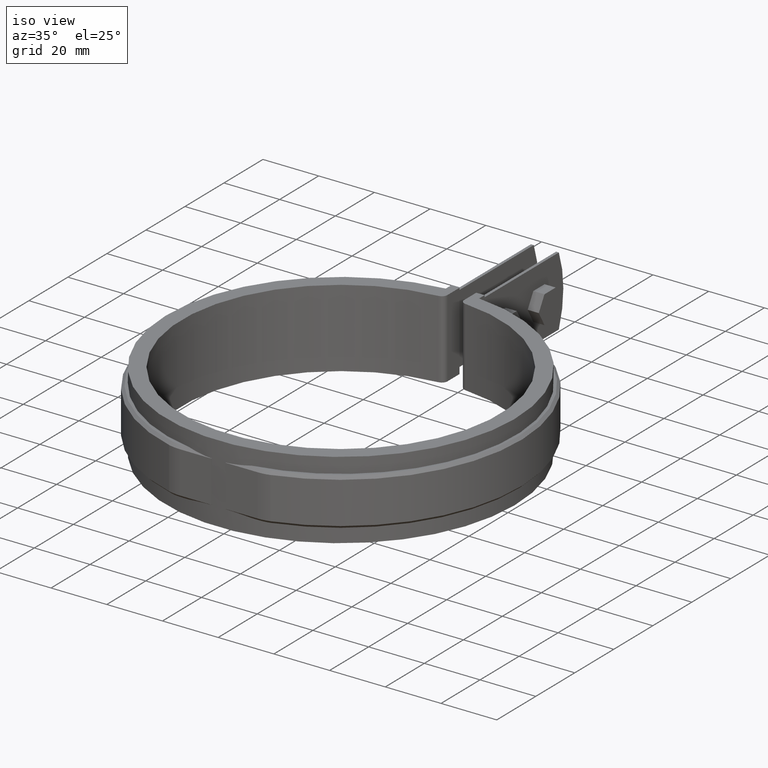
[diagram: clean part render]
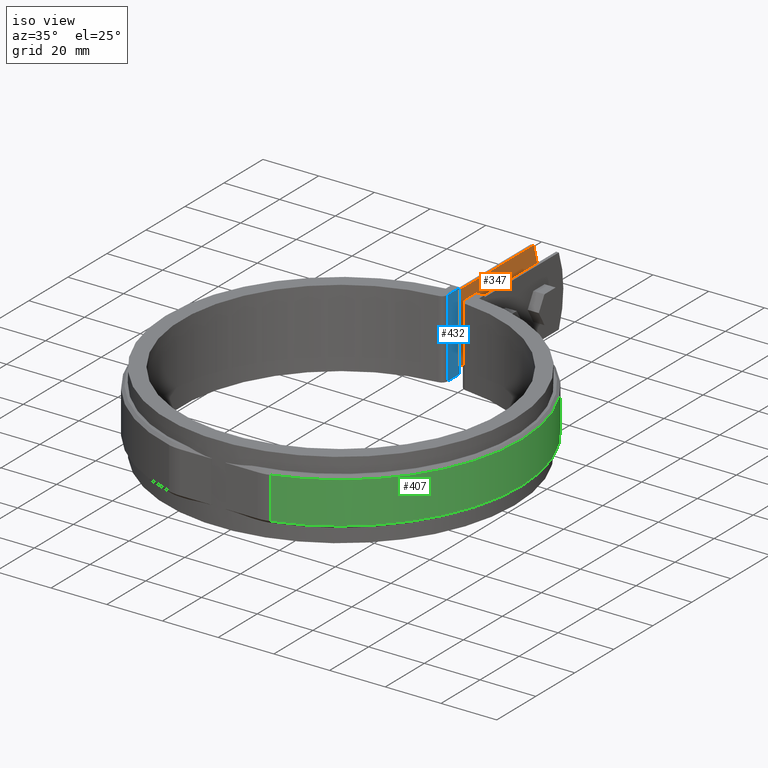
[diagram: same view with three faces highlighted in distinct colors, each labeled with its STEP entity id]
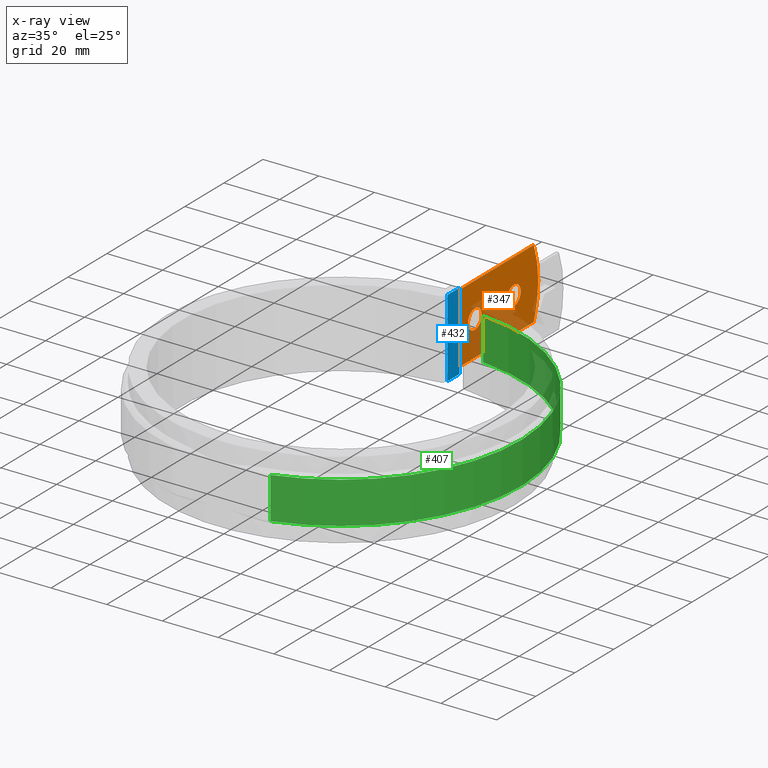
[diagram: x-ray of the same camera — body ghosted, the three highlighted faces saturated]
A machine part, iso view with three faces highlighted in distinct colors.
The next image is the same camera in x-ray (body ghosted, the three faces saturated) — at least one of them is partly hidden behind the body in this view.
Their STEP definitions:

[orange] entity #347 — the highlighted planar face has unit normal (1, -0, 0).
#347 = ADVANCED_FACE( '', ( #578, #579, #580 ), #581, .T. );
#578 = FACE_OUTER_BOUND( '', #1173, .T. );
#579 = FACE_BOUND( '', #1174, .T. );
#580 = FACE_BOUND( '', #1175, .T. );
#581 = PLANE( '', #1176 );
#1173 = EDGE_LOOP( '', ( #2568, #2569, #2570, #2571 ) );
#1174 = EDGE_LOOP( '', ( #2572 ) );
#1175 = EDGE_LOOP( '', ( #2573 ) );
#1176 = AXIS2_PLACEMENT_3D( '', #2574, #2575, #2576 );
#2568 = ORIENTED_EDGE( '', *, *, #3950, .F. );
#2569 = ORIENTED_EDGE( '', *, *, #3957, .F. );
#2570 = ORIENTED_EDGE( '', *, *, #3958, .T. );
#2571 = ORIENTED_EDGE( '', *, *, #3959, .T. );
#2572 = ORIENTED_EDGE( '', *, *, #3935, .T. );
#2573 = ORIENTED_EDGE( '', *, *, #3960, .T. );
#2574 = CARTESIAN_POINT( '', ( -4.00000000000000, 61.7545342464827, -12.5000000000000 ) );
#2575 = DIRECTION( '', ( 1.00000000000000, -6.16283340149655E-017, 0.000000000000000 ) );
#2576 = DIRECTION( '', ( -6.16283340149655E-017, -1.00000000000000, 0.000000000000000 ) );
#3935 = EDGE_CURVE( '', #4497, #4497, #4498, .F. );
#3950 = EDGE_CURVE( '', #4517, #4511, #4519, .T. );
#3957 = EDGE_CURVE( '', #4528, #4517, #4529, .T. );
#3958 = EDGE_CURVE( '', #4528, #4530, #4531, .T. );
#3959 = EDGE_CURVE( '', #4530, #4511, #4532, .T. );
#3960 = EDGE_CURVE( '', #4533, #4533, #4534, .F. );
#4497 = VERTEX_POINT( '', #6324 );
#4498 = CIRCLE( '', #6325, 3.50000000000000 );
#4511 = VERTEX_POINT( '', #6397 );
#4517 = VERTEX_POINT( '', #6406 );
#4519 = LINE( '', #6408, #6409 );
#4528 = VERTEX_POINT( '', #6426 );
#4529 = LINE( '', #6427, #6428 );
#4530 = VERTEX_POINT( '', #6429 );
#4531 = LINE( '', #6430, #6431 );
#4532 = CIRCLE( '', #6432, 35.0000000000000 );
#4533 = VERTEX_POINT( '', #6433 );
#4534 = CIRCLE( '', #6434, 3.50000000000000 );
#6324 = CARTESIAN_POINT( '', ( -3.99999999999999, 77.9418259648470, -1.73472347597681E-015 ) );
#6325 = AXIS2_PLACEMENT_3D( '', #8134, #8135, #8136 );
#6397 = CARTESIAN_POINT( '', ( -3.99999999999995, 104.633568041402, 12.5000000000000 ) );
#6406 = CARTESIAN_POINT( '', ( -4.00000000000000, 61.7545342464827, 12.5000000000000 ) );
#6408 = CARTESIAN_POINT( '', ( -4.00000000000000, 61.7545342464827, 12.5000000000000 ) );
#6409 = VECTOR( '', #8153, 1000.00000000000 );
#6426 = CARTESIAN_POINT( '', ( -4.00000000000000, 61.7545342464827, -12.5000000000000 ) );
#6427 = CARTESIAN_POINT( '', ( -4.00000000000000, 61.7545342464827, -12.5000000000000 ) );
#6428 = VECTOR( '', #8167, 1000.00000000000 );
#6429 = CARTESIAN_POINT( '', ( -3.99999999999999, 104.633568041402, -12.5000000000000 ) );
#6430 = CARTESIAN_POINT( '', ( -4.00000000000000, 61.7545342464827, -12.5000000000000 ) );
#6431 = VECTOR( '', #8168, 1000.00000000000 );
#6432 = AXIS2_PLACEMENT_3D( '', #8169, #8170, #8171 );
#6433 = CARTESIAN_POINT( '', ( -3.99999999999999, 97.9418259648470, -1.73472347597681E-015 ) );
#6434 = AXIS2_PLACEMENT_3D( '', #8172, #8173, #8174 );
#8134 = CARTESIAN_POINT( '', ( -3.99999999999999, 74.4418259648470, -1.73472347597681E-015 ) );
#8135 = DIRECTION( '', ( 1.00000000000000, -6.16283340149655E-017, 0.000000000000000 ) );
#8136 = DIRECTION( '', ( 6.16283340149655E-017, 1.00000000000000, 0.000000000000000 ) );
#8153 = DIRECTION( '', ( 6.16283340149655E-017, 1.00000000000000, 0.000000000000000 ) );
#8167 = DIRECTION( '', ( 0.000000000000000, 0.000000000000000, 1.00000000000000 ) );
#8168 = DIRECTION( '', ( 6.16283340149655E-017, 1.00000000000000, 0.000000000000000 ) );
#8169 = CARTESIAN_POINT( '', ( -4.00000000000000, 71.9418259648470, 5.55111512312578E-014 ) );
#8170 = DIRECTION( '', ( 1.00000000000000, -6.16283340149655E-017, 0.000000000000000 ) );
#8171 = DIRECTION( '', ( 6.16283340149655E-017, 1.00000000000000, 0.000000000000000 ) );
#8172 = CARTESIAN_POINT( '', ( -3.99999999999999, 94.4418259648470, -1.73472347597681E-015 ) );
#8173 = DIRECTION( '', ( 1.00000000000000, -6.16283340149655E-017, 0.000000000000000 ) );
#8174 = DIRECTION( '', ( 6.16283340149655E-017, 1.00000000000000, 0.000000000000000 ) );

[blue] entity #432 — the highlighted planar face has unit normal (1, -0, 0).
#432 = ADVANCED_FACE( '', ( #756 ), #757, .T. );
#756 = FACE_OUTER_BOUND( '', #1718, .T. );
#757 = PLANE( '', #1719 );
#1718 = EDGE_LOOP( '', ( #3311, #3312, #3313, #3314 ) );
#1719 = AXIS2_PLACEMENT_3D( '', #3315, #3316, #3317 );
#3311 = ORIENTED_EDGE( '', *, *, #4119, .F. );
#3312 = ORIENTED_EDGE( '', *, *, #4171, .F. );
#3313 = ORIENTED_EDGE( '', *, *, #4116, .T. );
#3314 = ORIENTED_EDGE( '', *, *, #4108, .T. );
#3315 = CARTESIAN_POINT( '', ( -2.99999999999995, 58.9382940031352, -14.0000000000000 ) );
#3316 = DIRECTION( '', ( 1.00000000000000, -2.77555756156289E-017, 0.000000000000000 ) );
#3317 = DIRECTION( '', ( -2.77555756156289E-017, -1.00000000000000, 0.000000000000000 ) );
#4108 = EDGE_CURVE( '', #4785, #4783, #4786, .T. );
#4116 = EDGE_CURVE( '', #4797, #4785, #4798, .T. );
#4119 = EDGE_CURVE( '', #4802, #4783, #4803, .T. );
#4171 = EDGE_CURVE( '', #4797, #4802, #4877, .T. );
#4783 = VERTEX_POINT( '', #7444 );
#4785 = VERTEX_POINT( '', #7447 );
#4786 = LINE( '', #7448, #7449 );
#4797 = VERTEX_POINT( '', #7467 );
#4798 = LINE( '', #7468, #7469 );
#4802 = VERTEX_POINT( '', #7473 );
#4803 = LINE( '', #7474, #7475 );
#4877 = LINE( '', #7586, #7587 );
#7444 = CARTESIAN_POINT( '', ( -2.99999999999995, 65.1500000000000, 14.0000000000000 ) );
#7447 = CARTESIAN_POINT( '', ( -2.99999999999995, 65.1500000000000, -14.0000000000000 ) );
#7448 = CARTESIAN_POINT( '', ( -2.99999999999995, 65.1500000000000, -14.0000000000000 ) );
#7449 = VECTOR( '', #8351, 1000.00000000000 );
#7467 = CARTESIAN_POINT( '', ( -2.99999999999995, 58.9382940031352, -14.0000000000000 ) );
#7468 = CARTESIAN_POINT( '', ( -2.99999999999995, 58.9382940031352, -14.0000000000000 ) );
#7469 = VECTOR( '', #8359, 1000.00000000000 );
#7473 = CARTESIAN_POINT( '', ( -2.99999999999995, 58.9382940031352, 14.0000000000000 ) );
#7474 = CARTESIAN_POINT( '', ( -2.99999999999995, 58.9382940031352, 14.0000000000000 ) );
#7475 = VECTOR( '', #8366, 1000.00000000000 );
#7586 = CARTESIAN_POINT( '', ( -2.99999999999995, 58.9382940031352, -14.0000000000000 ) );
#7587 = VECTOR( '', #8455, 1000.00000000000 );
#8351 = DIRECTION( '', ( 0.000000000000000, 0.000000000000000, 1.00000000000000 ) );
#8359 = DIRECTION( '', ( 4.16333634234434E-017, 1.00000000000000, 0.000000000000000 ) );
#8366 = DIRECTION( '', ( 4.16333634234434E-017, 1.00000000000000, 0.000000000000000 ) );
#8455 = DIRECTION( '', ( 0.000000000000000, 0.000000000000000, 1.00000000000000 ) );

[green] entity #407 — the highlighted cylindrical surface (partial cylindrical patch) has radius 64.65 mm, axis along (0, 0, -1).
#407 = ADVANCED_FACE( '', ( #706 ), #707, .T. );
#706 = FACE_OUTER_BOUND( '', #1558, .T. );
#707 = CYLINDRICAL_SURFACE( '', #1559, 64.6500000000000 );
#1558 = EDGE_LOOP( '', ( #3134, #3135, #3136, #3137 ) );
#1559 = AXIS2_PLACEMENT_3D( '', #3138, #3139, #3140 );
#3134 = ORIENTED_EDGE( '', *, *, #4091, .T. );
#3135 = ORIENTED_EDGE( '', *, *, #4140, .T. );
#3136 = ORIENTED_EDGE( '', *, *, #4141, .F. );
#3137 = ORIENTED_EDGE( '', *, *, #4142, .T. );
#3138 = CARTESIAN_POINT( '', ( 0.000000000000000, 1.38777878078145E-014, -8.50000000000000 ) );
#3139 = DIRECTION( '', ( 0.000000000000000, 0.000000000000000, -1.00000000000000 ) );
#3140 = DIRECTION( '', ( 0.0773395204949730, 0.997004813714361, 0.000000000000000 ) );
#4091 = EDGE_CURVE( '', #4758, #4759, #4760, .T. );
#4140 = EDGE_CURVE( '', #4759, #4835, #4836, .F. );
#4141 = EDGE_CURVE( '', #4837, #4835, #4838, .T. );
#4142 = EDGE_CURVE( '', #4837, #4758, #4839, .T. );
#4758 = VERTEX_POINT( '', #7390 );
#4759 = VERTEX_POINT( '', #7391 );
#4760 = LINE( '', #7392, #7393 );
#4835 = VERTEX_POINT( '', #7517 );
#4836 = CIRCLE( '', #7518, 64.6500000000000 );
#4837 = VERTEX_POINT( '', #7519 );
#4838 = LINE( '', #7520, #7521 );
#4839 = CIRCLE( '', #7522, 64.6500000000000 );
#7390 = CARTESIAN_POINT( '', ( 6.00000000000001, 64.3709756023629, -7.50000000000000 ) );
#7391 = CARTESIAN_POINT( '', ( 6.00000000000001, 64.3709756023629, 7.50000000000000 ) );
#7392 = CARTESIAN_POINT( '', ( 6.00000000000001, 64.3709756023629, -8.50000000000000 ) );
#7393 = VECTOR( '', #8338, 1000.00000000000 );
#7517 = CARTESIAN_POINT( '', ( 18.1643848332456, -62.0457703927492, 7.50000000000000 ) );
#7518 = AXIS2_PLACEMENT_3D( '', #8407, #8408, #8409 );
#7519 = CARTESIAN_POINT( '', ( 18.1643848332456, -62.0457703927492, -7.50000000000000 ) );
#7520 = CARTESIAN_POINT( '', ( 18.1643848332456, -62.0457703927492, -8.50000000000000 ) );
#7521 = VECTOR( '', #8410, 1000.00000000000 );
#7522 = AXIS2_PLACEMENT_3D( '', #8411, #8412, #8413 );
#8338 = DIRECTION( '', ( 0.000000000000000, 0.000000000000000, 1.00000000000000 ) );
#8407 = CARTESIAN_POINT( '', ( 0.000000000000000, 1.38777878078145E-014, 7.50000000000000 ) );
#8408 = DIRECTION( '', ( 0.000000000000000, 0.000000000000000, 1.00000000000000 ) );
#8409 = DIRECTION( '', ( 1.00000000000000, 0.000000000000000, 0.000000000000000 ) );
#8410 = DIRECTION( '', ( 0.000000000000000, 0.000000000000000, 1.00000000000000 ) );
#8411 = CARTESIAN_POINT( '', ( 0.000000000000000, 1.38777878078145E-014, -7.50000000000000 ) );
#8412 = DIRECTION( '', ( 0.000000000000000, 0.000000000000000, 1.00000000000000 ) );
#8413 = DIRECTION( '', ( 1.00000000000000, 0.000000000000000, 0.000000000000000 ) );